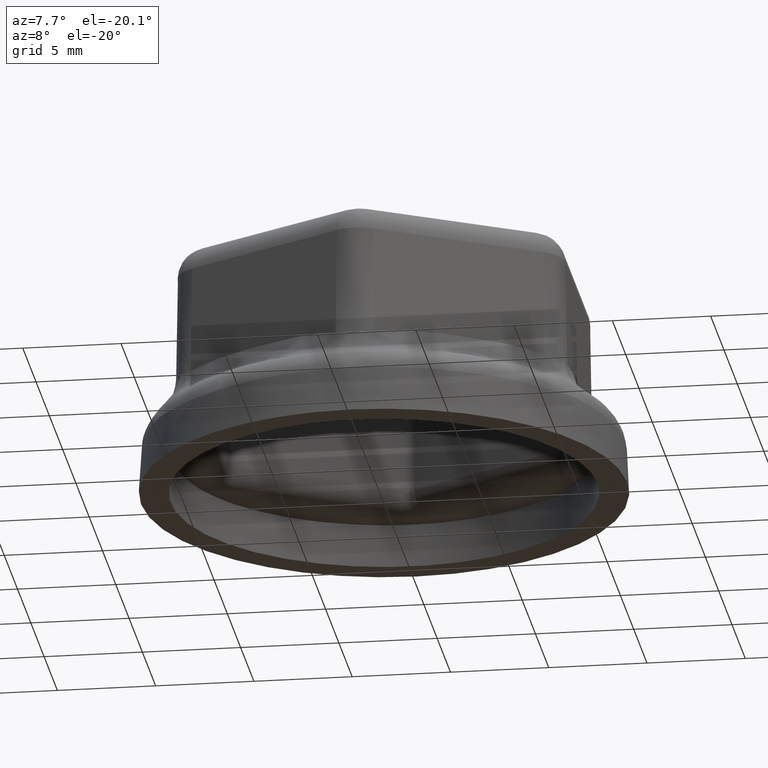
[diagram: clean part render]
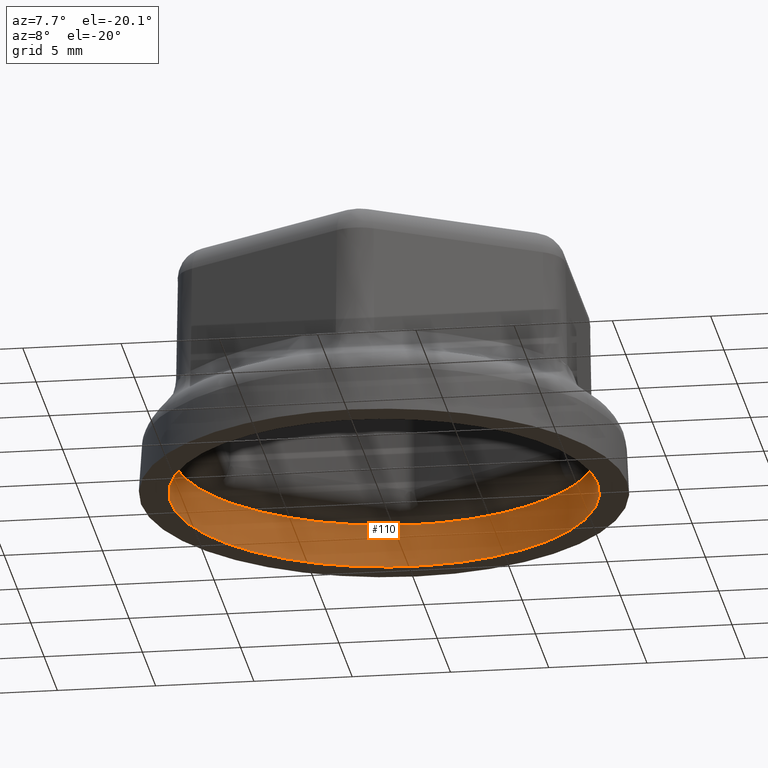
[diagram: same view with one face highlighted and labeled with its STEP entity id]
A machine part, auxiliary view. The second image highlights one B-rep face of the part: STEP entity #110.
In plain terms, the highlighted conical surface has half-angle 3 deg.
Its self-contained STEP definition (entity closure, byte-faithful):
#110 = ADVANCED_FACE( '', ( #277, #278 ), #279, .F. );
#277 = FACE_OUTER_BOUND( '', #1497, .T. );
#278 = FACE_BOUND( '', #1498, .T. );
#279 = CONICAL_SURFACE( '', #1499, 10.7500000000000, 0.0523598775598299 );
#1497 = EDGE_LOOP( '', ( #5564 ) );
#1498 = EDGE_LOOP( '', ( #5565, #5566, #5567, #5568, #5569, #5570, #5571, #5572, #5573, #5574, #5575, #5576, #5577, #5578, #5579, #5580, #5581, #5582, #5583, #5584, #5585, #5586, #5587, #5588 ) );
#1499 = AXIS2_PLACEMENT_3D( '', #5589, #5590, #5591 );
#5564 = ORIENTED_EDGE( '', *, *, #6207, .F. );
#5565 = ORIENTED_EDGE( '', *, *, #6166, .T. );
#5566 = ORIENTED_EDGE( '', *, *, #6171, .T. );
#5567 = ORIENTED_EDGE( '', *, *, #6180, .T. );
#5568 = ORIENTED_EDGE( '', *, *, #6208, .T. );
#5569 = ORIENTED_EDGE( '', *, *, #6193, .T. );
#5570 = ORIENTED_EDGE( '', *, *, #6199, .T. );
#5571 = ORIENTED_EDGE( '', *, *, #6206, .T. );
#5572 = ORIENTED_EDGE( '', *, *, #6209, .T. );
#5573 = ORIENTED_EDGE( '', *, *, #6197, .T. );
#5574 = ORIENTED_EDGE( '', *, *, #6191, .T. );
#5575 = ORIENTED_EDGE( '', *, *, #6183, .T. );
#5576 = ORIENTED_EDGE( '', *, *, #6210, .T. );
#5577 = ORIENTED_EDGE( '', *, *, #6169, .T. );
#5578 = ORIENTED_EDGE( '', *, *, #6164, .T. );
#5579 = ORIENTED_EDGE( '', *, *, #6160, .T. );
#5580 = ORIENTED_EDGE( '', *, *, #6211, .T. );
#5581 = ORIENTED_EDGE( '', *, *, #6151, .T. );
#5582 = ORIENTED_EDGE( '', *, *, #6149, .T. );
#5583 = ORIENTED_EDGE( '', *, *, #6212, .T. );
#5584 = ORIENTED_EDGE( '', *, *, #6213, .T. );
#5585 = ORIENTED_EDGE( '', *, *, #6144, .T. );
#5586 = ORIENTED_EDGE( '', *, *, #6153, .T. );
#5587 = ORIENTED_EDGE( '', *, *, #6158, .T. );
#5588 = ORIENTED_EDGE( '', *, *, #6214, .T. );
#5589 = CARTESIAN_POINT( '', ( 0.000000000000000, 0.000000000000000, 2.20000000000000 ) );
#5590 = DIRECTION( '', ( 0.000000000000000, 0.000000000000000, -1.00000000000000 ) );
#5591 = DIRECTION( '', ( -1.00000000000000, 0.000000000000000, 0.000000000000000 ) );
#6144 = EDGE_CURVE( '', #6484, #6482, #6485, .T. );
#6149 = EDGE_CURVE( '', #6487, #6490, #6492, .T. );
#6151 = EDGE_CURVE( '', #6493, #6487, #6495, .T. );
#6153 = EDGE_CURVE( '', #6482, #6496, #6498, .T. );
#6158 = EDGE_CURVE( '', #6496, #6503, #6505, .T. );
#6160 = EDGE_CURVE( '', #6506, #6500, #6508, .T. );
#6164 = EDGE_CURVE( '', #6512, #6506, #6514, .T. );
#6166 = EDGE_CURVE( '', #6509, #6515, #6517, .T. );
#6169 = EDGE_CURVE( '', #6519, #6512, #6522, .T. );
#6171 = EDGE_CURVE( '', #6515, #6523, #6526, .T. );
#6180 = EDGE_CURVE( '', #6523, #6537, #6540, .T. );
#6183 = EDGE_CURVE( '', #6542, #6533, #6544, .T. );
#6191 = EDGE_CURVE( '', #6554, #6542, #6557, .T. );
#6193 = EDGE_CURVE( '', #6550, #6558, #6560, .T. );
#6197 = EDGE_CURVE( '', #6563, #6554, #6566, .T. );
#6199 = EDGE_CURVE( '', #6558, #6567, #6570, .T. );
#6206 = EDGE_CURVE( '', #6567, #6576, #6579, .T. );
#6207 = EDGE_CURVE( '', #6580, #6580, #6581, .T. );
#6208 = EDGE_CURVE( '', #6537, #6550, #6582, .T. );
#6209 = EDGE_CURVE( '', #6576, #6563, #6583, .T. );
#6210 = EDGE_CURVE( '', #6533, #6519, #6584, .T. );
#6211 = EDGE_CURVE( '', #6500, #6493, #6585, .T. );
#6212 = EDGE_CURVE( '', #6490, #6586, #6587, .T. );
#6213 = EDGE_CURVE( '', #6586, #6484, #6588, .T. );
#6214 = EDGE_CURVE( '', #6503, #6509, #6589, .T. );
#6482 = VERTEX_POINT( '', #7141 );
#6484 = VERTEX_POINT( '', #7143 );
#6485 = CIRCLE( '', #7144, 10.7500000000000 );
#6487 = VERTEX_POINT( '', #7146 );
#6490 = VERTEX_POINT( '', #7180 );
#6492 = CIRCLE( '', #7182, 10.7500000000000 );
#6493 = VERTEX_POINT( '', #7183 );
#6495 = CIRCLE( '', #7185, 10.7500000000000 );
#6496 = VERTEX_POINT( '', #7186 );
#6498 = CIRCLE( '', #7188, 10.7500000000000 );
#6500 = VERTEX_POINT( '', #7221 );
#6503 = VERTEX_POINT( '', #7225 );
#6505 = CIRCLE( '', #7227, 10.7500000000000 );
#6506 = VERTEX_POINT( '', #7228 );
#6508 = CIRCLE( '', #7230, 10.7500000000000 );
#6509 = VERTEX_POINT( '', #7231 );
#6512 = VERTEX_POINT( '', #7235 );
#6514 = CIRCLE( '', #7237, 10.7500000000000 );
#6515 = VERTEX_POINT( '', #7238 );
#6517 = CIRCLE( '', #7240, 10.7500000000000 );
#6519 = VERTEX_POINT( '', #7242 );
#6522 = CIRCLE( '', #7250, 10.7500000000000 );
#6523 = VERTEX_POINT( '', #7251 );
#6526 = CIRCLE( '', #7254, 10.7500000000000 );
#6533 = VERTEX_POINT( '', #7299 );
#6537 = VERTEX_POINT( '', #7305 );
#6540 = CIRCLE( '', #7308, 10.7500000000000 );
#6542 = VERTEX_POINT( '', #7315 );
#6544 = CIRCLE( '', #7317, 10.7500000000000 );
#6550 = VERTEX_POINT( '', #7330 );
#6554 = VERTEX_POINT( '', #7335 );
#6557 = CIRCLE( '', #7369, 10.7500000000000 );
#6558 = VERTEX_POINT( '', #7370 );
#6560 = CIRCLE( '', #7372, 10.7500000000000 );
#6563 = VERTEX_POINT( '', #7376 );
#6566 = CIRCLE( '', #7384, 10.7500000000000 );
#6567 = VERTEX_POINT( '', #7385 );
#6570 = CIRCLE( '', #7388, 10.7500000000000 );
#6576 = VERTEX_POINT( '', #7432 );
#6579 = CIRCLE( '', #7436, 10.7500000000000 );
#6580 = VERTEX_POINT( '', #7437 );
#6581 = CIRCLE( '', #7438, 10.8652971144227 );
#6582 = CIRCLE( '', #7439, 10.7500000000000 );
#6583 = CIRCLE( '', #7440, 10.7500000000000 );
#6584 = CIRCLE( '', #7441, 10.7500000000000 );
#6585 = CIRCLE( '', #7442, 10.7500000000000 );
#6586 = VERTEX_POINT( '', #7443 );
#6587 = CIRCLE( '', #7444, 10.7500000000000 );
#6588 = CIRCLE( '', #7445, 10.7500000000000 );
#6589 = CIRCLE( '', #7446, 10.7500000000000 );
#7141 = CARTESIAN_POINT( '', ( 8.78193866334260, -6.20000429945725, 2.20000000000000 ) );
#7143 = CARTESIAN_POINT( '', ( 8.45987211886861, -6.63272671926030, 2.20000000000000 ) );
#7144 = AXIS2_PLACEMENT_3D( '', #9221, #9222, #9223 );
#7146 = CARTESIAN_POINT( '', ( -0.978391895231411, -10.7053841266601, 2.20000000000000 ) );
#7180 = CARTESIAN_POINT( '', ( 0.978391895231418, -10.7053841266601, 2.20000000000000 ) );
#7182 = AXIS2_PLACEMENT_3D( '', #9233, #9234, #9235 );
#7183 = CARTESIAN_POINT( '', ( -1.51417377580492, -10.6428275273381, 2.20000000000000 ) );
#7185 = AXIS2_PLACEMENT_3D( '', #9239, #9240, #9241 );
#7186 = CARTESIAN_POINT( '', ( 9.76033055857401, -4.50537982720284, 2.20000000000000 ) );
#7188 = AXIS2_PLACEMENT_3D( '', #9245, #9246, #9247 );
#7221 = CARTESIAN_POINT( '', ( -8.45987211886862, -6.63272671926029, 2.20000000000000 ) );
#7225 = CARTESIAN_POINT( '', ( 9.97404589467353, -4.01010080807778, 2.20000000000000 ) );
#7227 = AXIS2_PLACEMENT_3D( '', #9255, #9256, #9257 );
#7228 = CARTESIAN_POINT( '', ( -8.78193866334260, -6.20000429945724, 2.20000000000000 ) );
#7230 = AXIS2_PLACEMENT_3D( '', #9261, #9262, #9263 );
#7231 = CARTESIAN_POINT( '', ( 9.97404589467354, 4.01010080807777, 2.20000000000000 ) );
#7235 = CARTESIAN_POINT( '', ( -9.76033055857402, -4.50537982720282, 2.20000000000000 ) );
#7237 = AXIS2_PLACEMENT_3D( '', #9271, #9272, #9273 );
#7238 = CARTESIAN_POINT( '', ( 9.76033055857402, 4.50537982720283, 2.20000000000000 ) );
#7240 = AXIS2_PLACEMENT_3D( '', #9277, #9278, #9279 );
#7242 = CARTESIAN_POINT( '', ( -9.97404589467354, -4.01010080807777, 2.20000000000000 ) );
#7250 = AXIS2_PLACEMENT_3D( '', #9283, #9284, #9285 );
#7251 = CARTESIAN_POINT( '', ( 8.78193866334260, 6.20000429945725, 2.20000000000000 ) );
#7254 = AXIS2_PLACEMENT_3D( '', #9289, #9290, #9291 );
#7299 = CARTESIAN_POINT( '', ( -9.97404589467354, 4.01010080807777, 2.20000000000000 ) );
#7305 = CARTESIAN_POINT( '', ( 8.45987211886862, 6.63272671926029, 2.20000000000000 ) );
#7308 = AXIS2_PLACEMENT_3D( '', #9302, #9303, #9304 );
#7315 = CARTESIAN_POINT( '', ( -9.76033055857402, 4.50537982720283, 2.20000000000000 ) );
#7317 = AXIS2_PLACEMENT_3D( '', #9308, #9309, #9310 );
#7330 = CARTESIAN_POINT( '', ( 1.51417377580492, 10.6428275273381, 2.20000000000000 ) );
#7335 = CARTESIAN_POINT( '', ( -8.78193866334260, 6.20000429945724, 2.20000000000000 ) );
#7369 = AXIS2_PLACEMENT_3D( '', #9320, #9321, #9322 );
#7370 = CARTESIAN_POINT( '', ( 0.978391895231414, 10.7053841266601, 2.20000000000000 ) );
#7372 = AXIS2_PLACEMENT_3D( '', #9326, #9327, #9328 );
#7376 = CARTESIAN_POINT( '', ( -8.45987211886862, 6.63272671926029, 2.20000000000000 ) );
#7384 = AXIS2_PLACEMENT_3D( '', #9333, #9334, #9335 );
#7385 = CARTESIAN_POINT( '', ( -0.978391895231418, 10.7053841266601, 2.20000000000000 ) );
#7388 = AXIS2_PLACEMENT_3D( '', #9339, #9340, #9341 );
#7432 = CARTESIAN_POINT( '', ( -1.51417377580492, 10.6428275273381, 2.20000000000000 ) );
#7436 = AXIS2_PLACEMENT_3D( '', #9348, #9349, #9350 );
#7437 = CARTESIAN_POINT( '', ( 10.8652971144227, 0.000000000000000, 0.000000000000000 ) );
#7438 = AXIS2_PLACEMENT_3D( '', #9351, #9352, #9353 );
#7439 = AXIS2_PLACEMENT_3D( '', #9354, #9355, #9356 );
#7440 = AXIS2_PLACEMENT_3D( '', #9357, #9358, #9359 );
#7441 = AXIS2_PLACEMENT_3D( '', #9360, #9361, #9362 );
#7442 = AXIS2_PLACEMENT_3D( '', #9363, #9364, #9365 );
#7443 = CARTESIAN_POINT( '', ( 1.51417377580492, -10.6428275273381, 2.20000000000000 ) );
#7444 = AXIS2_PLACEMENT_3D( '', #9366, #9367, #9368 );
#7445 = AXIS2_PLACEMENT_3D( '', #9369, #9370, #9371 );
#7446 = AXIS2_PLACEMENT_3D( '', #9372, #9373, #9374 );
#9221 = CARTESIAN_POINT( '', ( 0.000000000000000, 0.000000000000000, 2.20000000000000 ) );
#9222 = DIRECTION( '', ( 0.000000000000000, 0.000000000000000, 1.00000000000000 ) );
#9223 = DIRECTION( '', ( 1.00000000000000, 0.000000000000000, 0.000000000000000 ) );
#9233 = CARTESIAN_POINT( '', ( 0.000000000000000, 0.000000000000000, 2.20000000000000 ) );
#9234 = DIRECTION( '', ( 0.000000000000000, 0.000000000000000, 1.00000000000000 ) );
#9235 = DIRECTION( '', ( 1.00000000000000, 0.000000000000000, 0.000000000000000 ) );
#9239 = CARTESIAN_POINT( '', ( 0.000000000000000, 0.000000000000000, 2.20000000000000 ) );
#9240 = DIRECTION( '', ( 0.000000000000000, 0.000000000000000, 1.00000000000000 ) );
#9241 = DIRECTION( '', ( 1.00000000000000, 0.000000000000000, 0.000000000000000 ) );
#9245 = CARTESIAN_POINT( '', ( 0.000000000000000, 0.000000000000000, 2.20000000000000 ) );
#9246 = DIRECTION( '', ( 0.000000000000000, 0.000000000000000, 1.00000000000000 ) );
#9247 = DIRECTION( '', ( 1.00000000000000, 0.000000000000000, 0.000000000000000 ) );
#9255 = CARTESIAN_POINT( '', ( 0.000000000000000, 0.000000000000000, 2.20000000000000 ) );
#9256 = DIRECTION( '', ( 0.000000000000000, 0.000000000000000, 1.00000000000000 ) );
#9257 = DIRECTION( '', ( 1.00000000000000, 0.000000000000000, 0.000000000000000 ) );
#9261 = CARTESIAN_POINT( '', ( 0.000000000000000, 0.000000000000000, 2.20000000000000 ) );
#9262 = DIRECTION( '', ( 0.000000000000000, 0.000000000000000, 1.00000000000000 ) );
#9263 = DIRECTION( '', ( 1.00000000000000, 0.000000000000000, 0.000000000000000 ) );
#9271 = CARTESIAN_POINT( '', ( 0.000000000000000, 0.000000000000000, 2.20000000000000 ) );
#9272 = DIRECTION( '', ( 0.000000000000000, 0.000000000000000, 1.00000000000000 ) );
#9273 = DIRECTION( '', ( 1.00000000000000, 0.000000000000000, 0.000000000000000 ) );
#9277 = CARTESIAN_POINT( '', ( 0.000000000000000, 0.000000000000000, 2.20000000000000 ) );
#9278 = DIRECTION( '', ( 0.000000000000000, 0.000000000000000, 1.00000000000000 ) );
#9279 = DIRECTION( '', ( 1.00000000000000, 0.000000000000000, 0.000000000000000 ) );
#9283 = CARTESIAN_POINT( '', ( 0.000000000000000, 0.000000000000000, 2.20000000000000 ) );
#9284 = DIRECTION( '', ( 0.000000000000000, 0.000000000000000, 1.00000000000000 ) );
#9285 = DIRECTION( '', ( 1.00000000000000, 0.000000000000000, 0.000000000000000 ) );
#9289 = CARTESIAN_POINT( '', ( 0.000000000000000, 0.000000000000000, 2.20000000000000 ) );
#9290 = DIRECTION( '', ( 0.000000000000000, 0.000000000000000, 1.00000000000000 ) );
#9291 = DIRECTION( '', ( 1.00000000000000, 0.000000000000000, 0.000000000000000 ) );
#9302 = CARTESIAN_POINT( '', ( 0.000000000000000, 0.000000000000000, 2.20000000000000 ) );
#9303 = DIRECTION( '', ( 0.000000000000000, 0.000000000000000, 1.00000000000000 ) );
#9304 = DIRECTION( '', ( 1.00000000000000, 0.000000000000000, 0.000000000000000 ) );
#9308 = CARTESIAN_POINT( '', ( 0.000000000000000, 0.000000000000000, 2.20000000000000 ) );
#9309 = DIRECTION( '', ( 0.000000000000000, 0.000000000000000, 1.00000000000000 ) );
#9310 = DIRECTION( '', ( 1.00000000000000, 0.000000000000000, 0.000000000000000 ) );
#9320 = CARTESIAN_POINT( '', ( 0.000000000000000, 0.000000000000000, 2.20000000000000 ) );
#9321 = DIRECTION( '', ( 0.000000000000000, 0.000000000000000, 1.00000000000000 ) );
#9322 = DIRECTION( '', ( 1.00000000000000, 0.000000000000000, 0.000000000000000 ) );
#9326 = CARTESIAN_POINT( '', ( 0.000000000000000, 0.000000000000000, 2.20000000000000 ) );
#9327 = DIRECTION( '', ( 0.000000000000000, 0.000000000000000, 1.00000000000000 ) );
#9328 = DIRECTION( '', ( 1.00000000000000, 0.000000000000000, 0.000000000000000 ) );
#9333 = CARTESIAN_POINT( '', ( 0.000000000000000, 0.000000000000000, 2.20000000000000 ) );
#9334 = DIRECTION( '', ( 0.000000000000000, 0.000000000000000, 1.00000000000000 ) );
#9335 = DIRECTION( '', ( 1.00000000000000, 0.000000000000000, 0.000000000000000 ) );
#9339 = CARTESIAN_POINT( '', ( 0.000000000000000, 0.000000000000000, 2.20000000000000 ) );
#9340 = DIRECTION( '', ( 0.000000000000000, 0.000000000000000, 1.00000000000000 ) );
#9341 = DIRECTION( '', ( 1.00000000000000, 0.000000000000000, 0.000000000000000 ) );
#9348 = CARTESIAN_POINT( '', ( 0.000000000000000, 0.000000000000000, 2.20000000000000 ) );
#9349 = DIRECTION( '', ( 0.000000000000000, 0.000000000000000, 1.00000000000000 ) );
#9350 = DIRECTION( '', ( 1.00000000000000, 0.000000000000000, 0.000000000000000 ) );
#9351 = CARTESIAN_POINT( '', ( 0.000000000000000, 0.000000000000000, 0.000000000000000 ) );
#9352 = DIRECTION( '', ( 0.000000000000000, 0.000000000000000, 1.00000000000000 ) );
#9353 = DIRECTION( '', ( 1.00000000000000, 0.000000000000000, 0.000000000000000 ) );
#9354 = CARTESIAN_POINT( '', ( 0.000000000000000, 0.000000000000000, 2.20000000000000 ) );
#9355 = DIRECTION( '', ( 0.000000000000000, 0.000000000000000, 1.00000000000000 ) );
#9356 = DIRECTION( '', ( 1.00000000000000, 0.000000000000000, 0.000000000000000 ) );
#9357 = CARTESIAN_POINT( '', ( 0.000000000000000, 0.000000000000000, 2.20000000000000 ) );
#9358 = DIRECTION( '', ( 0.000000000000000, 0.000000000000000, 1.00000000000000 ) );
#9359 = DIRECTION( '', ( 1.00000000000000, 0.000000000000000, 0.000000000000000 ) );
#9360 = CARTESIAN_POINT( '', ( 0.000000000000000, 0.000000000000000, 2.20000000000000 ) );
#9361 = DIRECTION( '', ( 0.000000000000000, 0.000000000000000, 1.00000000000000 ) );
#9362 = DIRECTION( '', ( 1.00000000000000, 0.000000000000000, 0.000000000000000 ) );
#9363 = CARTESIAN_POINT( '', ( 0.000000000000000, 0.000000000000000, 2.20000000000000 ) );
#9364 = DIRECTION( '', ( 0.000000000000000, 0.000000000000000, 1.00000000000000 ) );
#9365 = DIRECTION( '', ( 1.00000000000000, 0.000000000000000, 0.000000000000000 ) );
#9366 = CARTESIAN_POINT( '', ( 0.000000000000000, 0.000000000000000, 2.20000000000000 ) );
#9367 = DIRECTION( '', ( 0.000000000000000, 0.000000000000000, 1.00000000000000 ) );
#9368 = DIRECTION( '', ( 1.00000000000000, 0.000000000000000, 0.000000000000000 ) );
#9369 = CARTESIAN_POINT( '', ( 0.000000000000000, 0.000000000000000, 2.20000000000000 ) );
#9370 = DIRECTION( '', ( 0.000000000000000, 0.000000000000000, 1.00000000000000 ) );
#9371 = DIRECTION( '', ( 1.00000000000000, 0.000000000000000, 0.000000000000000 ) );
#9372 = CARTESIAN_POINT( '', ( 0.000000000000000, 0.000000000000000, 2.20000000000000 ) );
#9373 = DIRECTION( '', ( 0.000000000000000, 0.000000000000000, 1.00000000000000 ) );
#9374 = DIRECTION( '', ( 1.00000000000000, 0.000000000000000, 0.000000000000000 ) );